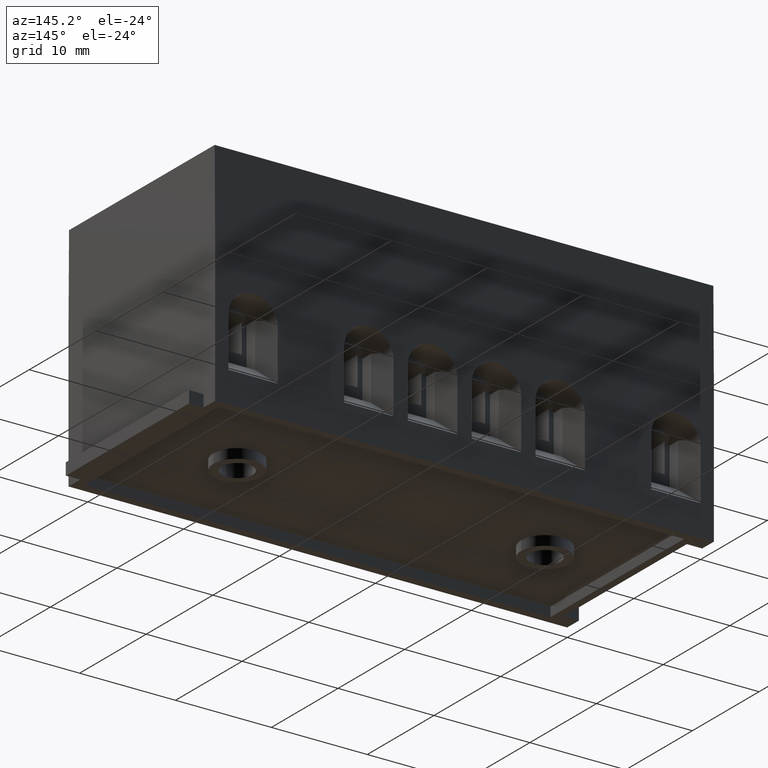
[diagram: clean part render]
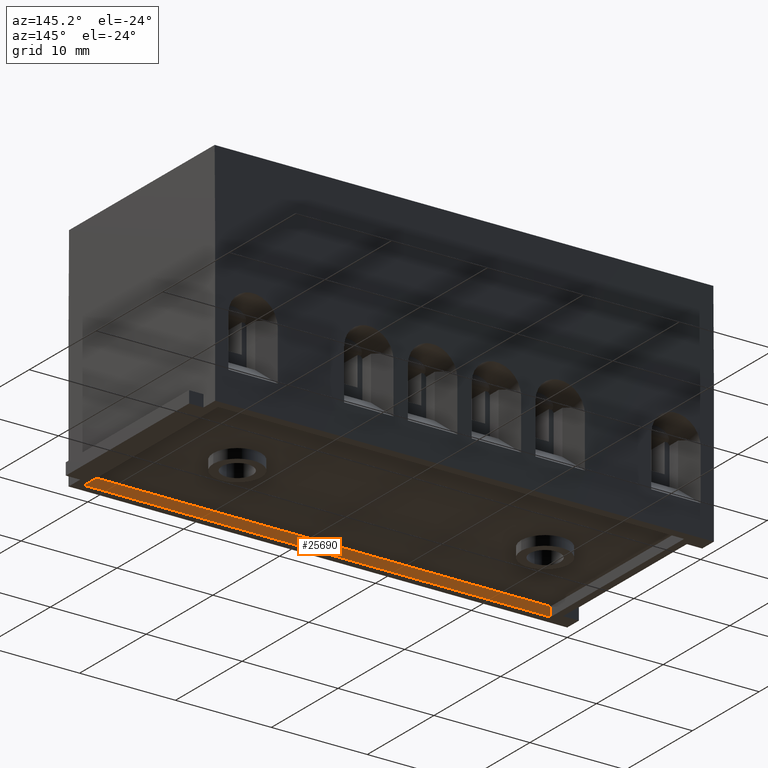
[diagram: same view with one face highlighted and labeled with its STEP entity id]
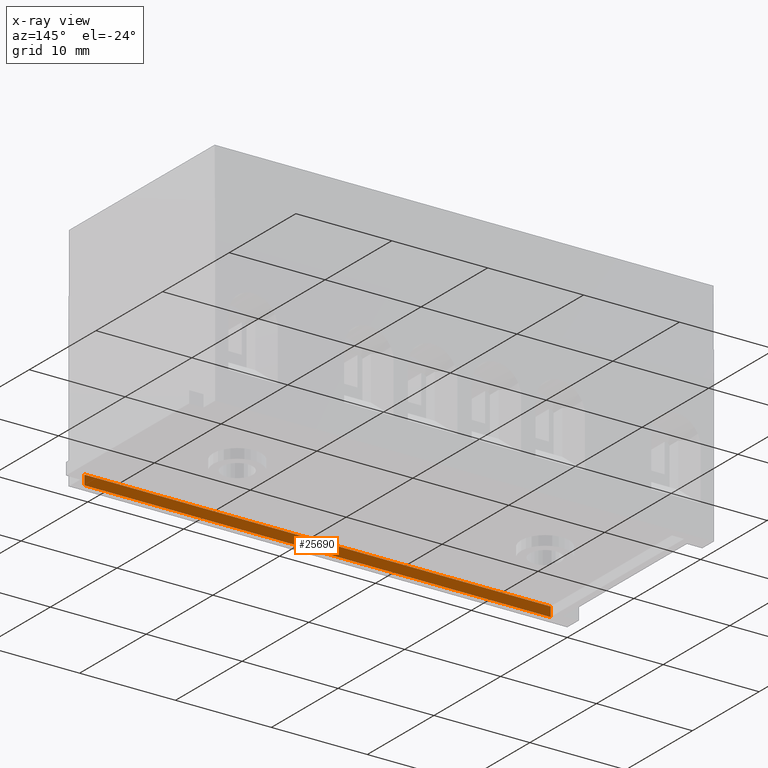
[diagram: x-ray of the same camera — body ghosted, the highlighted face saturated]
A machine part, auxiliary view. The second image highlights one B-rep face of the part: STEP entity #25690.
The next image is the same camera in x-ray: the body ghosted, the highlighted face saturated — about 0% of this face is hidden behind the body in this view.
In plain terms, the highlighted planar face has unit normal (0, 1, -0).
Its self-contained STEP definition (entity closure, byte-faithful):
#24040=CARTESIAN_POINT('',(-86.3061518197678,-195.978083115857,
0.973814078430836));
#24050=VERTEX_POINT('',#24040);
#24220=CARTESIAN_POINT('',(-134.908523662906,-195.978083115857,
0.973814078430838));
#24230=VERTEX_POINT('',#24220);
#24260=CARTESIAN_POINT('',(-117.482337741337,-195.978083115857,
0.973814078430836));
#24270=DIRECTION('',(1.,-3.08148791101958E-33,4.16333634234434E-17));
#24280=VECTOR('',#24270,1.);
#24290=LINE('',#24260,#24280);
#24300=EDGE_CURVE('',#24230,#24050,#24290,.T.);
#24890=CARTESIAN_POINT('',(-86.3061518197678,-194.978083115857,
0.973814078430835));
#24900=VERTEX_POINT('',#24890);
#24930=CARTESIAN_POINT('',(-16.0977982051627,-194.978083115857,
0.973814078430835));
#24940=DIRECTION('',(-1.,0.,-4.16333634234434E-17));
#24950=VECTOR('',#24940,1.);
#24960=LINE('',#24930,#24950);
#24970=CARTESIAN_POINT('',(-134.908523662906,-194.978083115857,
0.973814078430838));
#24980=VERTEX_POINT('',#24970);
#24990=EDGE_CURVE('',#24900,#24980,#24960,.T.);
#25480=CARTESIAN_POINT('',(-100.006151819768,-195.978083115857,
0.973814078430836));
#25490=DIRECTION('',(-4.16333634234434E-17,-1.11022302462516E-16,1.));
#25500=DIRECTION('',(1.,0.,4.16333634234434E-17));
#25510=AXIS2_PLACEMENT_3D('',#25480,#25490,#25500);
#25520=PLANE('',#25510);
#25530=CARTESIAN_POINT('',(-86.3061518197678,-195.978083115857,
0.973814078430836));
#25540=DIRECTION('',(-4.62223186652936E-33,1.,1.11022302462516E-16));
#25550=VECTOR('',#25540,1.);
#25560=LINE('',#25530,#25550);
#25570=EDGE_CURVE('',#24050,#24900,#25560,.T.);
#25580=ORIENTED_EDGE('',*,*,#25570,.T.);
#25590=ORIENTED_EDGE('',*,*,#24300,.T.);
#25600=CARTESIAN_POINT('',(-134.908523662906,-195.978083115857,
0.973814078430834));
#25610=DIRECTION('',(-4.62223186652936E-33,1.,1.11022302462516E-16));
#25620=VECTOR('',#25610,1.);
#25630=LINE('',#25600,#25620);
#25640=EDGE_CURVE('',#24230,#24980,#25630,.T.);
#25650=ORIENTED_EDGE('',*,*,#25640,.F.);
#25660=ORIENTED_EDGE('',*,*,#24990,.T.);
#25670=EDGE_LOOP('',(#25660,#25650,#25590,#25580));
#25680=FACE_OUTER_BOUND('',#25670,.T.);
#25690=ADVANCED_FACE('',(#25680),#25520,.T.);